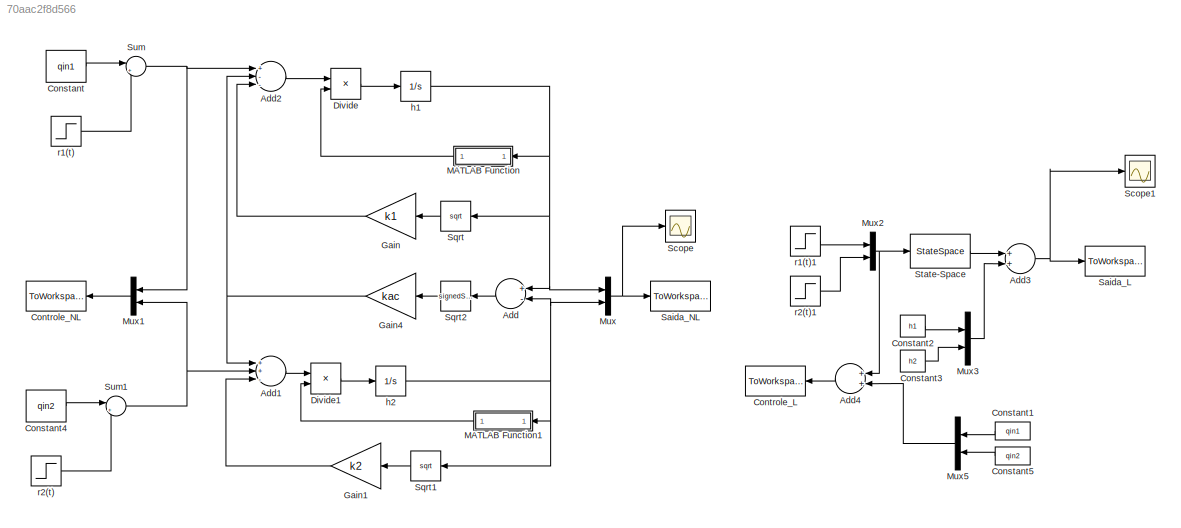
MODEL slx_70aac2f8d566
KIND model
CONFIG AbsTol = auto
CONFIG EnableMultiTasking = off
CONFIG FixedStep = auto
CONFIG MaxStep = auto
CONFIG MinStep = auto
CONFIG RelTol = 1e-3
CONFIG SampleTimeConstraint = Unconstrained
CONFIG Solver = VariableStepAuto
CONFIG SolverName = VariableStepAuto
CONFIG StartTime = 0.0
CONFIG StopTime = 500
BLOCK [Sum] Add
  InputSameDT = off
  Inputs = +-
  OutDataTypeStr = Inherit: Inherit via internal rule
  Ports = [2, 1]
  SaturateOnIntegerOverflow = off
BLOCK [Sum] Add1
  InputSameDT = off
  Inputs = ++-
  OutDataTypeStr = Inherit: Inherit via internal rule
  Ports = [3, 1]
  SaturateOnIntegerOverflow = off
BLOCK [Sum] Add2
  InputSameDT = off
  Inputs = +--
  OutDataTypeStr = Inherit: Inherit via internal rule
  Ports = [3, 1]
  SaturateOnIntegerOverflow = off
BLOCK [Sum] Add3
  InputSameDT = off
  OutDataTypeStr = Inherit: Inherit via internal rule
  Ports = [2, 1]
  SaturateOnIntegerOverflow = off
BLOCK [Sum] Add4
  InputSameDT = off
  OutDataTypeStr = Inherit: Inherit via internal rule
  Ports = [2, 1]
  SaturateOnIntegerOverflow = off
BLOCK [Constant] Constant
  Value = qin1
BLOCK [Constant] Constant1
  Value = qin1
BLOCK [Constant] Constant2
  Value = h1
BLOCK [Constant] Constant3
  Value = h2
BLOCK [Constant] Constant4
  Value = qin2
BLOCK [Constant] Constant5
  Value = qin2
BLOCK [ToWorkspace] Controle_L
  FixptAsFi = on
  MaxDataPoints = inf
  Ports = [1]
  SampleTime = -1
  Save2DSignal = 3-D array (concatenate along third dimension)
  SaveFormat = Timeseries
  VariableName = u_L
BLOCK [ToWorkspace] Controle_NL
  FixptAsFi = on
  MaxDataPoints = inf
  Ports = [1]
  SampleTime = -1
  Save2DSignal = 3-D array (concatenate along third dimension)
  SaveFormat = Timeseries
  VariableName = u_NL
BLOCK [Product] Divide
  InputSameDT = off
  Inputs = */
  OutDataTypeStr = Inherit: Inherit via internal rule
  Ports = [2, 1]
  RndMeth = Floor
  SaturateOnIntegerOverflow = off
BLOCK [Product] Divide1
  InputSameDT = off
  Inputs = */
  OutDataTypeStr = Inherit: Inherit via internal rule
  Ports = [2, 1]
  RndMeth = Floor
  SaturateOnIntegerOverflow = off
BLOCK [Gain] Gain
  Gain = k1
  Multiplication = Matrix(K*u)
  OutDataTypeStr = Inherit: Inherit via internal rule
  ParamDataTypeStr = Inherit: Inherit via internal rule
  SaturateOnIntegerOverflow = off
BLOCK [Gain] Gain1
  Gain = k2
  Multiplication = Matrix(K*u)
  OutDataTypeStr = Inherit: Inherit via internal rule
  ParamDataTypeStr = Inherit: Inherit via internal rule
  SaturateOnIntegerOverflow = off
BLOCK [Gain] Gain4
  Gain = kac
  Multiplication = Matrix(K*u)
  OutDataTypeStr = Inherit: Inherit via internal rule
  ParamDataTypeStr = Inherit: Inherit via internal rule
  SaturateOnIntegerOverflow = off
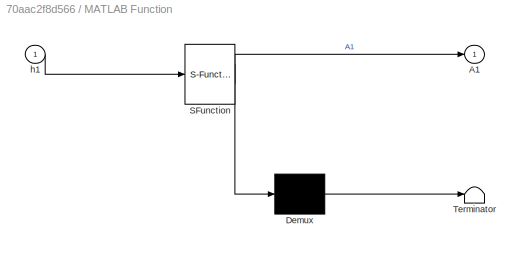
BLOCK [SubSystem] MATLAB Function
  ErrorFcn = Stateflow.Translate.translate
  PermitHierarchicalResolution = ExplicitOnly
  Ports = [1, 1]
  RequestExecContextInheritance = off
  SFBlockType = MATLAB Function
  TreatAsAtomicUnit = on
BLOCK [Demux] MATLAB Function/ Demux 
  Outputs = 1
  Ports = [1, 1]
BLOCK [S-Function] MATLAB Function/ SFunction 
  EnableBusSupport = on
  FunctionName = sf_sfun
  PortCounts = [1 2]
  Ports = [1, 2]
  SFcnIsStateOwnerBlock = off
  SFunctionDeploymentMode = off
  Tag = Stateflow S-Function tanqueModelos 2
BLOCK [Terminator] MATLAB Function/ Terminator 
BLOCK [Outport] MATLAB Function/A1
  IconDisplay = Port number
BLOCK [Inport] MATLAB Function/h1
  IconDisplay = Port number
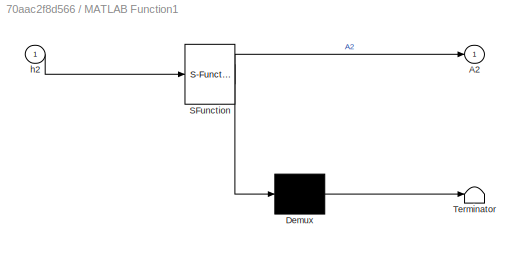
BLOCK [SubSystem] MATLAB Function1
  ErrorFcn = Stateflow.Translate.translate
  PermitHierarchicalResolution = ExplicitOnly
  Ports = [1, 1]
  RequestExecContextInheritance = off
  SFBlockType = MATLAB Function
  TreatAsAtomicUnit = on
BLOCK [Demux] MATLAB Function1/ Demux 
  Outputs = 1
  Ports = [1, 1]
BLOCK [S-Function] MATLAB Function1/ SFunction 
  EnableBusSupport = on
  FunctionName = sf_sfun
  PortCounts = [1 2]
  Ports = [1, 2]
  SFcnIsStateOwnerBlock = off
  SFunctionDeploymentMode = off
  Tag = Stateflow S-Function tanqueModelos 1
BLOCK [Terminator] MATLAB Function1/ Terminator 
BLOCK [Outport] MATLAB Function1/A2
  IconDisplay = Port number
BLOCK [Inport] MATLAB Function1/h2
  IconDisplay = Port number
BLOCK [Mux] Mux
  DisplayOption = bar
  Inputs = 2
  Ports = [2, 1]
BLOCK [Mux] Mux1
  DisplayOption = bar
  Inputs = 2
  Ports = [2, 1]
BLOCK [Mux] Mux2
  DisplayOption = bar
  Inputs = 2
  Ports = [2, 1]
BLOCK [Mux] Mux3
  DisplayOption = bar
  Inputs = 2
  Ports = [2, 1]
BLOCK [Mux] Mux5
  DisplayOption = bar
  Inputs = 2
  Ports = [2, 1]
BLOCK [ToWorkspace] Saida_L
  FixptAsFi = on
  MaxDataPoints = inf
  Ports = [1]
  SampleTime = -1
  Save2DSignal = 3-D array (concatenate along third dimension)
  SaveFormat = Timeseries
  VariableName = y_L
BLOCK [ToWorkspace] Saida_NL
  FixptAsFi = on
  MaxDataPoints = inf
  Ports = [1]
  SampleTime = -1
  Save2DSignal = 3-D array (concatenate along third dimension)
  SaveFormat = Timeseries
  VariableName = y_NL
BLOCK [Scope] Scope
  Floating = off
  NumInputPorts = 1
  Ports = [1]
  ScopeSpecificationString = Simulink.scopes.TimeScopeBlockCfg('CurrentConfiguration', extmgr.ConfigurationSet(extmgr.Configuration('Core','General UI',true),extmgr.Configuration('Core','Source UI',true),extmgr.Configuration('Sources','WiredSimulink',true),extmgr.Configuration('Visuals','Time Domain',true,'SerializedDisplays',{struct('MinYLimReal','18.87697','MaxYLimReal','30.10728','YLabelReal','','MinYLimMag','18.87697','Ma...<+1398ch>
BLOCK [Scope] Scope1
  Floating = off
  NumInputPorts = 1
  Ports = [1]
  ScopeSpecificationString = Simulink.scopes.TimeScopeBlockCfg('CurrentConfiguration', extmgr.ConfigurationSet(extmgr.Configuration('Core','General UI',true),extmgr.Configuration('Core','Source UI',true),extmgr.Configuration('Sources','WiredSimulink',true,'DataLoggingVariableName','ScopeData1'),extmgr.Configuration('Visuals','Time Domain',true,'SerializedDisplays',{struct('MinYLimReal','18.89838','MaxYLimReal','29.91457','YLa...<+1445ch>
BLOCK [Sqrt] Sqrt
BLOCK [Sqrt] Sqrt1
BLOCK [Sqrt] Sqrt2
  Operator = signedSqrt
BLOCK [StateSpace] State-Space
  A = A
  B = B2
  C = C
  D = D
  InitialCondition = 0
  Ports = [1, 1]
BLOCK [Sum] Sum
  IconShape = round
  InputSameDT = off
  Inputs = |++
  OutDataTypeStr = Inherit: Inherit via internal rule
  Ports = [2, 1]
  SaturateOnIntegerOverflow = off
BLOCK [Sum] Sum1
  IconShape = round
  InputSameDT = off
  Inputs = |++
  OutDataTypeStr = Inherit: Inherit via internal rule
  Ports = [2, 1]
  SaturateOnIntegerOverflow = off
BLOCK [Integrator] h1
  InitialCondition = h1
  LimitOutput = on
  LowerSaturationLimit = 0
  Ports = [1, 1]
  UpperSaturationLimit = 50
BLOCK [Integrator] h2
  InitialCondition = h2
  LimitOutput = on
  LowerSaturationLimit = 0
  Ports = [1, 1]
  UpperSaturationLimit = 50
BLOCK [Step] r1(t)
  After = stepValueh1
  SampleTime = 0
  Time = stepTime
BLOCK [Step] r1(t)1
  After = stepValueh1
  SampleTime = 0
  Time = stepTime
BLOCK [Step] r2(t)
  After = stepValueh2
  SampleTime = 0
  Time = stepTime
BLOCK [Step] r2(t)1
  After = stepValueh2
  SampleTime = 0
  Time = stepTime
LINE Add1:1 -> Divide1:1
LINE Add2:1 -> Divide:1
NET Add3:1 -> Saida_L:1, Scope1:1
LINE Add4:1 -> Controle_L:1
LINE Add:1 -> Sqrt2:1
LINE Constant1:1 -> Mux5:1
LINE Constant2:1 -> Mux3:1
LINE Constant3:1 -> Mux3:2
LINE Constant4:1 -> Sum1:1
LINE Constant5:1 -> Mux5:2
LINE Constant:1 -> Sum:1
LINE Divide1:1 -> h2:1
LINE Divide:1 -> h1:1
LINE Gain1:1 -> Add1:3
NET Gain4:1 -> Add1:1, Add2:2
LINE Gain:1 -> Add2:3
LINE MATLAB Function1:1 -> Divide1:2
LINE MATLAB Function:1 -> Divide:2
LINE Mux1:1 -> Controle_NL:1
NET Mux2:1 -> Add4:1, State-Space:1
LINE Mux3:1 -> Add3:2
LINE Mux5:1 -> Add4:2
NET Mux:1 -> Saida_NL:1, Scope:1
LINE Sqrt1:1 -> Gain1:1
LINE Sqrt2:1 -> Gain4:1
LINE Sqrt:1 -> Gain:1
LINE State-Space:1 -> Add3:1
NET Sum1:1 -> Add1:2, Mux1:2
NET Sum:1 -> Add2:1, Mux1:1
NET h1:1 -> Add:1, MATLAB Function:1, Mux:1, Sqrt:1
NET h2:1 -> Add:2, MATLAB Function1:1, Mux:2, Sqrt1:1
LINE r1(t)1:1 -> Mux2:1
LINE r1(t):1 -> Sum:2
LINE r2(t)1:1 -> Mux2:2
LINE r2(t):1 -> Sum1:2
note: NET lines group one-source signal fan-out (src -> all destinations, sorted); 1:1 wires keep LINE
CHART MATLAB Function1 states=1 transitions=1
  STATE_LABEL 'eML_blk_kernel()'
  STATE_LABEL 'SCRIPT:\nfunction A2 = secao_tanque(h2)\n\n    if h2 < 7.5\n        d2 = 6; \n    elseif h2 < 19.5\n        d2 = (19.5 - h2)/2;\n    elseif h2 < 29.5\n        d2 = 0;\n    elseif h2 < 41.5\n        d2=(h2 - 29.5)/2;\n    elseif h2 >= 41.5\n        d2 = 6;\n    else \n        d2 = 6;\n    end\n    A2 = 9*(14+d2);\n    \nend'
CHART MATLAB Function states=1 transitions=1
  STATE_LABEL 'eML_blk_kernel()'
  STATE_LABEL 'SCRIPT:\nfunction A1 = secao_tanque(h1)\n\n    if h1 < 7.5\n        d1 = 0;\n    elseif h1 < 19.5\n        d1 = (h1 - 7.5)/2;\n    elseif h1 < 29.5\n        d1 = 6;\n    elseif h1 < 41.5\n        d1 = (41.5 - h1)/2;\n    elseif h1 >= 41.5\n        d1 = 0;\n    else \n        d1 = 0;\n    end\n    A1 = 9*(8+d1);\nend'
